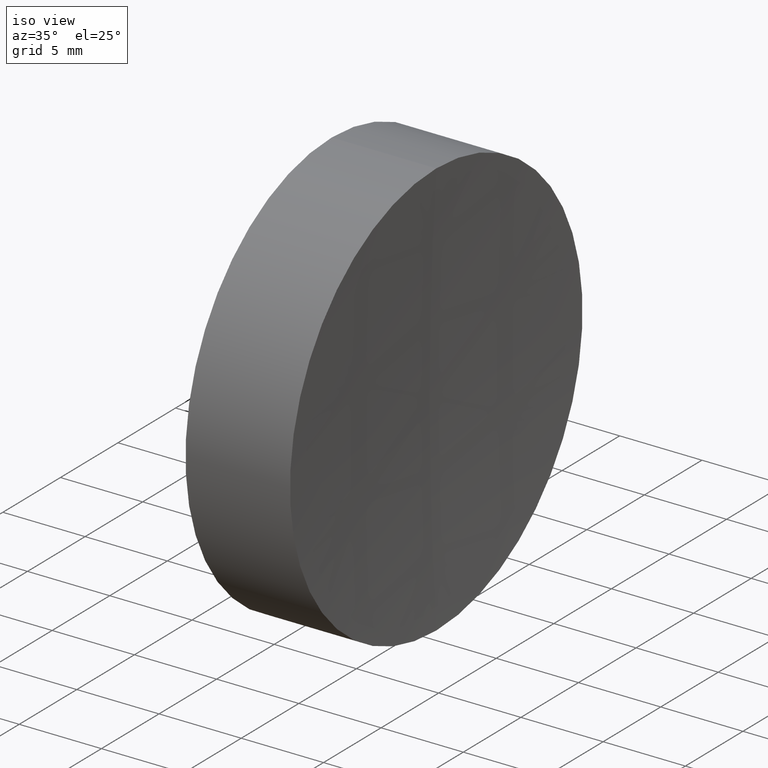
[diagram: clean part render]
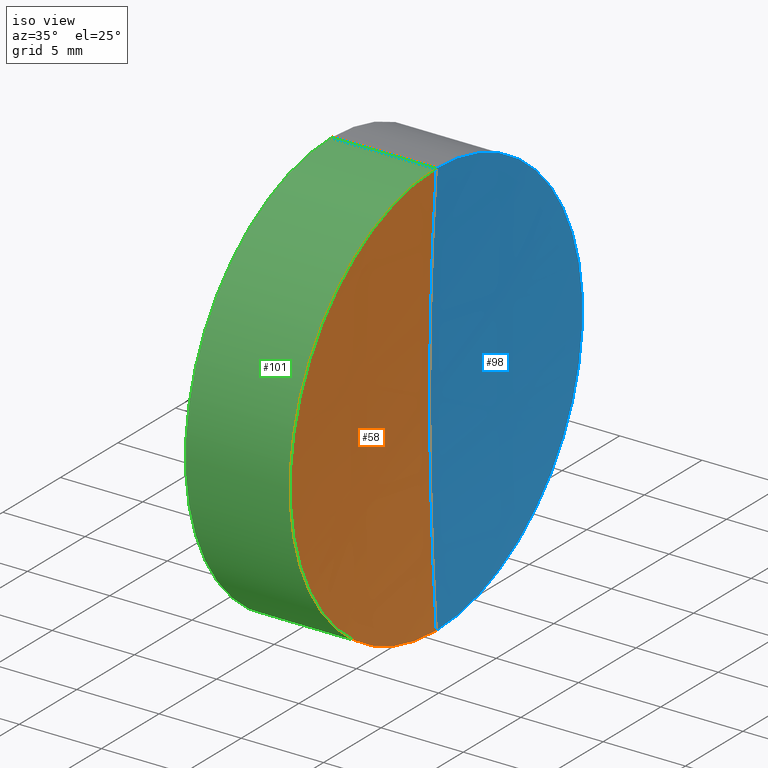
[diagram: same view with three faces highlighted in distinct colors, each labeled with its STEP entity id]
A machine part, iso view with three faces highlighted in distinct colors.
Their STEP definitions:

[orange] entity #58 — the highlighted spherical surface has radius 200 mm.
#1 = AXIS2_PLACEMENT_3D ( 'NONE', #150, #90, #9 ) ;
#8 = EDGE_CURVE ( 'NONE', #119, #27, #15, .T. ) ;
#9 = DIRECTION ( 'NONE',  ( 0.0000000000000000000, 0.0000000000000000000, 1.000000000000000000 ) ) ;
#15 = CIRCLE ( 'NONE', #144, 200.0000000000000000 ) ;
#16 = EDGE_CURVE ( 'NONE', #64, #119, #147, .T. ) ;
#18 = DIRECTION ( 'NONE',  ( 0.0000000000000000000, 0.0000000000000000000, 1.000000000000000000 ) ) ;
#27 = VERTEX_POINT ( 'NONE', #81 ) ;
#30 = CARTESIAN_POINT ( 'NONE',  ( 6.353632297579126000, 0.0000000000000000000, 0.0000000000000000000 ) ) ;
#31 = DIRECTION ( 'NONE',  ( 0.0000000000000000000, -1.224646799147353200E-016, 1.000000000000000000 ) ) ;
#33 = CARTESIAN_POINT ( 'NONE',  ( 6.353632297579126000, 1.555301434917142400E-015, -12.70000000000003100 ) ) ;
#35 = CARTESIAN_POINT ( 'NONE',  ( 205.9500000000000200, 0.0000000000000000000, 0.0000000000000000000 ) ) ;
#58 = ADVANCED_FACE ( 'NONE', ( #104 ), #140, .F. ) ;
#64 = VERTEX_POINT ( 'NONE', #33 ) ;
#66 = EDGE_CURVE ( 'NONE', #64, #27, #143, .T. ) ;
#68 = ORIENTED_EDGE ( 'NONE', *, *, #16, .F. ) ;
#69 = CARTESIAN_POINT ( 'NONE',  ( 6.353632297579126000, 0.0000000000000000000, 12.70000000000003100 ) ) ;
#75 = EDGE_LOOP ( 'NONE', ( #68, #80, #115 ) ) ;
#80 = ORIENTED_EDGE ( 'NONE', *, *, #66, .T. ) ;
#81 = CARTESIAN_POINT ( 'NONE',  ( 5.950000000000010800, 0.0000000000000000000, 1.224646799147353200E-014 ) ) ;
#90 = DIRECTION ( 'NONE',  ( 0.0000000000000000000, 1.000000000000000000, 0.0000000000000000000 ) ) ;
#104 = FACE_OUTER_BOUND ( 'NONE', #75, .T. ) ;
#106 = DIRECTION ( 'NONE',  ( -1.000000000000000000, -0.0000000000000000000, -0.0000000000000000000 ) ) ;
#107 = AXIS2_PLACEMENT_3D ( 'NONE', #149, #136, #31 ) ;
#109 = DIRECTION ( 'NONE',  ( 0.0000000000000000000, -1.000000000000000000, 0.0000000000000000000 ) ) ;
#115 = ORIENTED_EDGE ( 'NONE', *, *, #8, .F. ) ;
#119 = VERTEX_POINT ( 'NONE', #69 ) ;
#128 = AXIS2_PLACEMENT_3D ( 'NONE', #30, #106, #18 ) ;
#132 = DIRECTION ( 'NONE',  ( 0.0000000000000000000, 0.0000000000000000000, -1.000000000000000000 ) ) ;
#136 = DIRECTION ( 'NONE',  ( -0.0000000000000000000, 1.000000000000000000, 1.224646799147353200E-016 ) ) ;
#140 = SPHERICAL_SURFACE ( 'NONE', #1, 200.0000000000000000 ) ;
#143 = CIRCLE ( 'NONE', #107, 200.0000000000000000 ) ;
#144 = AXIS2_PLACEMENT_3D ( 'NONE', #35, #109, #132 ) ;
#147 = CIRCLE ( 'NONE', #128, 12.70000000000000600 ) ;
#149 = CARTESIAN_POINT ( 'NONE',  ( 205.9500000000000200, 0.0000000000000000000, 0.0000000000000000000 ) ) ;
#150 = CARTESIAN_POINT ( 'NONE',  ( 205.9500000000000200, 0.0000000000000000000, 0.0000000000000000000 ) ) ;

[blue] entity #98 — the highlighted spherical surface has radius 200 mm.
#5 = DIRECTION ( 'NONE',  ( 0.0000000000000000000, 0.0000000000000000000, 1.000000000000000000 ) ) ;
#8 = EDGE_CURVE ( 'NONE', #119, #27, #15, .T. ) ;
#11 = SPHERICAL_SURFACE ( 'NONE', #17, 200.0000000000000000 ) ;
#15 = CIRCLE ( 'NONE', #144, 200.0000000000000000 ) ;
#17 = AXIS2_PLACEMENT_3D ( 'NONE', #44, #85, #5 ) ;
#19 = CARTESIAN_POINT ( 'NONE',  ( 6.353632297579126000, 0.0000000000000000000, 0.0000000000000000000 ) ) ;
#27 = VERTEX_POINT ( 'NONE', #81 ) ;
#31 = DIRECTION ( 'NONE',  ( 0.0000000000000000000, -1.224646799147353200E-016, 1.000000000000000000 ) ) ;
#33 = CARTESIAN_POINT ( 'NONE',  ( 6.353632297579126000, 1.555301434917142400E-015, -12.70000000000003100 ) ) ;
#35 = CARTESIAN_POINT ( 'NONE',  ( 205.9500000000000200, 0.0000000000000000000, 0.0000000000000000000 ) ) ;
#38 = EDGE_CURVE ( 'NONE', #119, #64, #153, .T. ) ;
#43 = ORIENTED_EDGE ( 'NONE', *, *, #38, .F. ) ;
#44 = CARTESIAN_POINT ( 'NONE',  ( 205.9500000000000200, 0.0000000000000000000, 0.0000000000000000000 ) ) ;
#54 = ORIENTED_EDGE ( 'NONE', *, *, #8, .T. ) ;
#64 = VERTEX_POINT ( 'NONE', #33 ) ;
#66 = EDGE_CURVE ( 'NONE', #64, #27, #143, .T. ) ;
#69 = CARTESIAN_POINT ( 'NONE',  ( 6.353632297579126000, 0.0000000000000000000, 12.70000000000003100 ) ) ;
#81 = CARTESIAN_POINT ( 'NONE',  ( 5.950000000000010800, 0.0000000000000000000, 1.224646799147353200E-014 ) ) ;
#83 = DIRECTION ( 'NONE',  ( 0.0000000000000000000, 0.0000000000000000000, 1.000000000000000000 ) ) ;
#85 = DIRECTION ( 'NONE',  ( 0.0000000000000000000, 1.000000000000000000, 0.0000000000000000000 ) ) ;
#98 = ADVANCED_FACE ( 'NONE', ( #142 ), #11, .F. ) ;
#107 = AXIS2_PLACEMENT_3D ( 'NONE', #149, #136, #31 ) ;
#109 = DIRECTION ( 'NONE',  ( 0.0000000000000000000, -1.000000000000000000, 0.0000000000000000000 ) ) ;
#119 = VERTEX_POINT ( 'NONE', #69 ) ;
#124 = DIRECTION ( 'NONE',  ( -1.000000000000000000, -0.0000000000000000000, -0.0000000000000000000 ) ) ;
#129 = EDGE_LOOP ( 'NONE', ( #165, #43, #54 ) ) ;
#132 = DIRECTION ( 'NONE',  ( 0.0000000000000000000, 0.0000000000000000000, -1.000000000000000000 ) ) ;
#136 = DIRECTION ( 'NONE',  ( -0.0000000000000000000, 1.000000000000000000, 1.224646799147353200E-016 ) ) ;
#142 = FACE_OUTER_BOUND ( 'NONE', #129, .T. ) ;
#143 = CIRCLE ( 'NONE', #107, 200.0000000000000000 ) ;
#144 = AXIS2_PLACEMENT_3D ( 'NONE', #35, #109, #132 ) ;
#149 = CARTESIAN_POINT ( 'NONE',  ( 205.9500000000000200, 0.0000000000000000000, 0.0000000000000000000 ) ) ;
#153 = CIRCLE ( 'NONE', #164, 12.70000000000000600 ) ;
#164 = AXIS2_PLACEMENT_3D ( 'NONE', #19, #124, #83 ) ;
#165 = ORIENTED_EDGE ( 'NONE', *, *, #66, .F. ) ;

[green] entity #101 — the highlighted cylindrical surface (partial cylindrical patch) has radius 12.7 mm, axis along (-1, -0, -0).
#12 = LINE ( 'NONE', #123, #45 ) ;
#13 = EDGE_LOOP ( 'NONE', ( #49, #95, #39, #26 ) ) ;
#16 = EDGE_CURVE ( 'NONE', #64, #119, #147, .T. ) ;
#18 = DIRECTION ( 'NONE',  ( 0.0000000000000000000, 0.0000000000000000000, 1.000000000000000000 ) ) ;
#20 = DIRECTION ( 'NONE',  ( -1.000000000000000000, -0.0000000000000000000, -0.0000000000000000000 ) ) ;
#25 = EDGE_CURVE ( 'NONE', #64, #114, #41, .T. ) ;
#26 = ORIENTED_EDGE ( 'NONE', *, *, #42, .F. ) ;
#30 = CARTESIAN_POINT ( 'NONE',  ( 6.353632297579126000, 0.0000000000000000000, 0.0000000000000000000 ) ) ;
#33 = CARTESIAN_POINT ( 'NONE',  ( 6.353632297579126000, 1.555301434917142400E-015, -12.70000000000003100 ) ) ;
#39 = ORIENTED_EDGE ( 'NONE', *, *, #56, .T. ) ;
#41 = LINE ( 'NONE', #121, #110 ) ;
#42 = EDGE_CURVE ( 'NONE', #114, #97, #79, .T. ) ;
#45 = VECTOR ( 'NONE', #108, 1000.000000000000000 ) ;
#47 = DIRECTION ( 'NONE',  ( 0.0000000000000000000, 0.0000000000000000000, 1.000000000000000000 ) ) ;
#49 = ORIENTED_EDGE ( 'NONE', *, *, #25, .F. ) ;
#52 = AXIS2_PLACEMENT_3D ( 'NONE', #72, #20, #157 ) ;
#56 = EDGE_CURVE ( 'NONE', #119, #97, #12, .T. ) ;
#57 = CARTESIAN_POINT ( 'NONE',  ( 0.0000000000000000000, 0.0000000000000000000, 12.69999999999999900 ) ) ;
#64 = VERTEX_POINT ( 'NONE', #33 ) ;
#69 = CARTESIAN_POINT ( 'NONE',  ( 6.353632297579126000, 0.0000000000000000000, 12.70000000000003100 ) ) ;
#72 = CARTESIAN_POINT ( 'NONE',  ( 0.0000000000000000000, 0.0000000000000000000, 0.0000000000000000000 ) ) ;
#79 = CIRCLE ( 'NONE', #52, 12.69999999999999900 ) ;
#82 = CYLINDRICAL_SURFACE ( 'NONE', #138, 12.70000000000000300 ) ;
#86 = CARTESIAN_POINT ( 'NONE',  ( 0.0000000000000000000, 0.0000000000000000000, 0.0000000000000000000 ) ) ;
#95 = ORIENTED_EDGE ( 'NONE', *, *, #16, .T. ) ;
#97 = VERTEX_POINT ( 'NONE', #57 ) ;
#101 = ADVANCED_FACE ( 'NONE', ( #146 ), #82, .T. ) ;
#106 = DIRECTION ( 'NONE',  ( -1.000000000000000000, -0.0000000000000000000, -0.0000000000000000000 ) ) ;
#108 = DIRECTION ( 'NONE',  ( -1.000000000000000000, -0.0000000000000000000, -0.0000000000000000000 ) ) ;
#110 = VECTOR ( 'NONE', #156, 1000.000000000000000 ) ;
#114 = VERTEX_POINT ( 'NONE', #133 ) ;
#119 = VERTEX_POINT ( 'NONE', #69 ) ;
#121 = CARTESIAN_POINT ( 'NONE',  ( 0.0000000000000000000, 1.555301434917138800E-015, -12.70000000000000300 ) ) ;
#123 = CARTESIAN_POINT ( 'NONE',  ( 0.0000000000000000000, 0.0000000000000000000, 12.70000000000000300 ) ) ;
#128 = AXIS2_PLACEMENT_3D ( 'NONE', #30, #106, #18 ) ;
#133 = CARTESIAN_POINT ( 'NONE',  ( 0.0000000000000000000, 1.555301434917138600E-015, -12.69999999999999900 ) ) ;
#138 = AXIS2_PLACEMENT_3D ( 'NONE', #86, #159, #47 ) ;
#146 = FACE_OUTER_BOUND ( 'NONE', #13, .T. ) ;
#147 = CIRCLE ( 'NONE', #128, 12.70000000000000600 ) ;
#156 = DIRECTION ( 'NONE',  ( -1.000000000000000000, -0.0000000000000000000, -0.0000000000000000000 ) ) ;
#157 = DIRECTION ( 'NONE',  ( 0.0000000000000000000, 0.0000000000000000000, 1.000000000000000000 ) ) ;
#159 = DIRECTION ( 'NONE',  ( -1.000000000000000000, -0.0000000000000000000, -0.0000000000000000000 ) ) ;